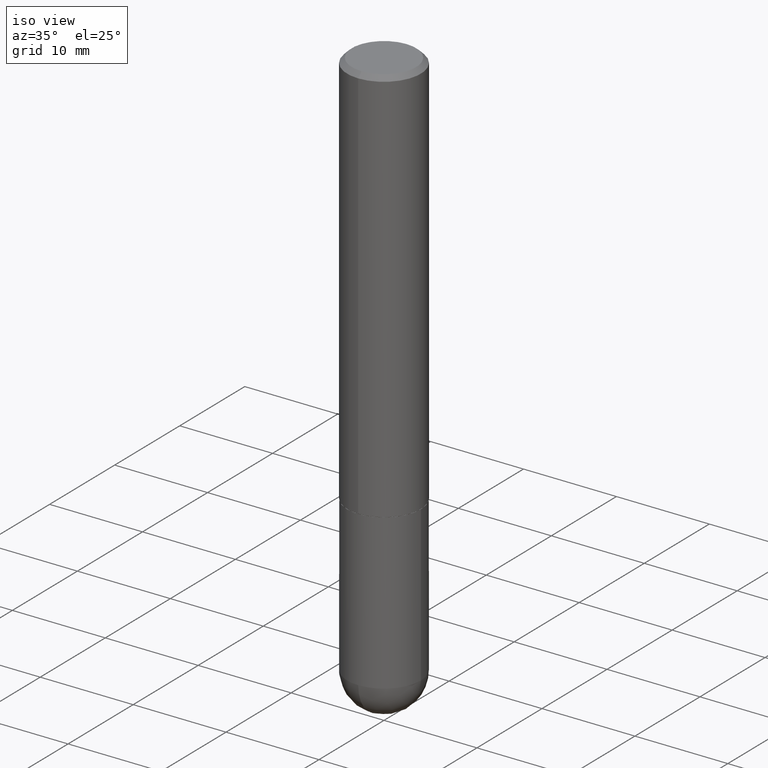
[diagram: clean part render]
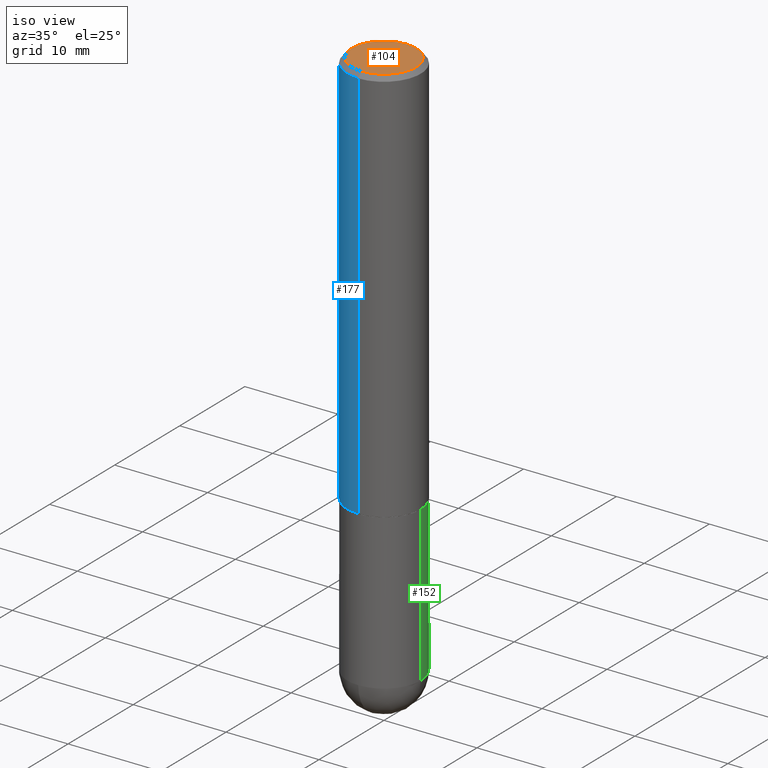
[diagram: same view with three faces highlighted in distinct colors, each labeled with its STEP entity id]
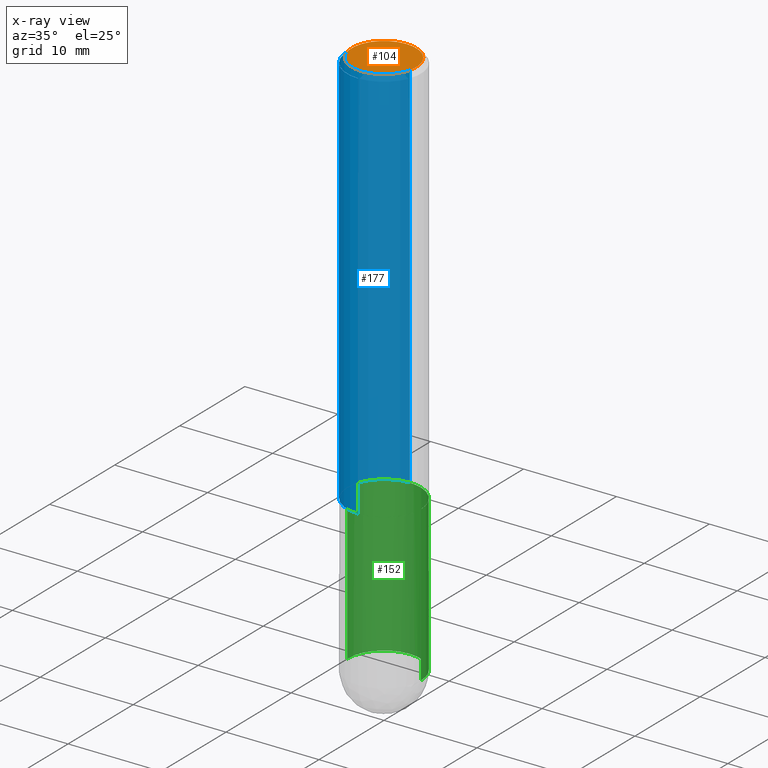
[diagram: x-ray of the same camera — body ghosted, the three highlighted faces saturated]
A machine part, iso view with three faces highlighted in distinct colors.
The next image is the same camera in x-ray (body ghosted, the three faces saturated) — at least one of them is partly hidden behind the body in this view.
Their STEP definitions:

[orange] entity #104 — the highlighted planar face has unit normal (0, -0, -1).
#95 = DIRECTION ( 'NONE',  ( -2.446097073552019730E-29, 3.490581624215010938E-15, 1.000000000000000000 ) ) ;
#104 = ADVANCED_FACE ( 'NONE', ( #328 ), #299, .F. ) ;
#107 = CARTESIAN_POINT ( 'NONE',  ( -1.003347832174086278E-15, -0.1362500000000000377, 4.925432101416136733E-16 ) ) ;
#114 = DIRECTION ( 'NONE',  ( 6.982962677686265922E-15, 1.000000000000000000, -3.490581624215010938E-15 ) ) ;
#131 = EDGE_LOOP ( 'NONE', ( #390, #233 ) ) ;
#136 = CARTESIAN_POINT ( 'NONE',  ( -4.146492609711773360E-46, 5.917046819154153531E-32, 1.695146384231832547E-17 ) ) ;
#140 = EDGE_CURVE ( 'NONE', #157, #326, #365, .T. ) ;
#146 = CIRCLE ( 'NONE', #341, 0.1362500000000000377 ) ;
#153 = AXIS2_PLACEMENT_3D ( 'NONE', #303, #305, #114 ) ;
#155 = DIRECTION ( 'NONE',  ( -6.982962677686265922E-15, -1.000000000000000000, 3.490581624215010544E-15 ) ) ;
#157 = VERTEX_POINT ( 'NONE', #107 ) ;
#176 = EDGE_CURVE ( 'NONE', #326, #157, #146, .T. ) ;
#233 = ORIENTED_EDGE ( 'NONE', *, *, #140, .T. ) ;
#268 = DIRECTION ( 'NONE',  ( -6.982962677686265922E-15, -1.000000000000000000, 3.490581624215010544E-15 ) ) ;
#277 = CARTESIAN_POINT ( 'NONE',  ( 1.021258291611616861E-15, 0.1362500000000000377, -4.586402824569769484E-16 ) ) ;
#299 = PLANE ( 'NONE',  #153 ) ;
#303 = CARTESIAN_POINT ( 'NONE',  ( 9.514286648347539576E-16, 0.1362500000000000377, -4.671160143781362282E-16 ) ) ;
#305 = DIRECTION ( 'NONE',  ( 2.446097073552019449E-29, -3.490581624215010938E-15, -1.000000000000000000 ) ) ;
#306 = CARTESIAN_POINT ( 'NONE',  ( -4.146492609711773360E-46, 5.917046819154153531E-32, 1.695146384231832547E-17 ) ) ;
#326 = VERTEX_POINT ( 'NONE', #277 ) ;
#328 = FACE_OUTER_BOUND ( 'NONE', #131, .T. ) ;
#334 = DIRECTION ( 'NONE',  ( -2.446097073552019730E-29, 3.490581624215010938E-15, 1.000000000000000000 ) ) ;
#341 = AXIS2_PLACEMENT_3D ( 'NONE', #306, #95, #155 ) ;
#365 = CIRCLE ( 'NONE', #399, 0.1362500000000000377 ) ;
#390 = ORIENTED_EDGE ( 'NONE', *, *, #176, .T. ) ;
#399 = AXIS2_PLACEMENT_3D ( 'NONE', #136, #334, #268 ) ;

[blue] entity #177 — the highlighted cylindrical surface (partial cylindrical patch) has radius 3.9688 mm, axis along (-0, 0, 1).
#5 = VERTEX_POINT ( 'NONE', #86 ) ;
#18 = DIRECTION ( 'NONE',  ( -2.446097073552019449E-29, 3.490581624215010938E-15, 1.000000000000000000 ) ) ;
#31 = ORIENTED_EDGE ( 'NONE', *, *, #283, .F. ) ;
#52 = EDGE_CURVE ( 'NONE', #5, #159, #142, .T. ) ;
#61 = CARTESIAN_POINT ( 'NONE',  ( 4.892194147104047096E-31, -6.981163248430033315E-17, -0.02000000000000003511 ) ) ;
#68 = FACE_OUTER_BOUND ( 'NONE', #331, .T. ) ;
#81 = DIRECTION ( 'NONE',  ( -6.982962677686265922E-15, -1.000000000000000000, 3.496765431890251792E-15 ) ) ;
#84 = CARTESIAN_POINT ( 'NONE',  ( 1.110223024625178431E-15, 0.1562499999999943379, -1.687000000000000499 ) ) ;
#86 = CARTESIAN_POINT ( 'NONE',  ( -1.091087918388439336E-15, -0.1562500000000060785, -1.686999999999999611 ) ) ;
#96 = CYLINDRICAL_SURFACE ( 'NONE', #382, 0.1562500000000001388 ) ;
#105 = VERTEX_POINT ( 'NONE', #84 ) ;
#124 = LINE ( 'NONE', #246, #133 ) ;
#133 = VECTOR ( 'NONE', #377, 39.37007874015748143 ) ;
#142 = LINE ( 'NONE', #168, #286 ) ;
#144 = DIRECTION ( 'NONE',  ( -2.446097073552019730E-29, 3.490581624215010938E-15, 1.000000000000000000 ) ) ;
#159 = VERTEX_POINT ( 'NONE', #227 ) ;
#168 = CARTESIAN_POINT ( 'NONE',  ( -1.091087918388479962E-15, -0.1562500000000001388, 5.454033787835959398E-16 ) ) ;
#177 = ADVANCED_FACE ( 'NONE', ( #68 ), #96, .T. ) ;
#178 = CARTESIAN_POINT ( 'NONE',  ( 1.091087918388479765E-15, 0.1562499999999999722, -0.02000000000000057981 ) ) ;
#189 = CIRCLE ( 'NONE', #401, 0.1562500000000000278 ) ;
#207 = CIRCLE ( 'NONE', #294, 0.1562500000000002220 ) ;
#227 = CARTESIAN_POINT ( 'NONE',  ( -1.071952812151801412E-15, -0.1562500000000001110, -0.01999999999999948694 ) ) ;
#246 = CARTESIAN_POINT ( 'NONE',  ( 1.110223024625157329E-15, 0.1562500000000001388, -5.454033787835959398E-16 ) ) ;
#253 = ORIENTED_EDGE ( 'NONE', *, *, #52, .T. ) ;
#266 = CARTESIAN_POINT ( 'NONE',  ( 4.126565763082257571E-29, -5.888611200050725168E-15, -1.687000000000000055 ) ) ;
#274 = DIRECTION ( 'NONE',  ( -6.982962677686266711E-15, -1.000000000000000000, 3.496765431890256131E-15 ) ) ;
#279 = DIRECTION ( 'NONE',  ( -2.446097073552019730E-29, 3.490581624215010938E-15, 1.000000000000000000 ) ) ;
#282 = DIRECTION ( 'NONE',  ( -6.982962677686265922E-15, -1.000000000000000000, 3.490581624215010938E-15 ) ) ;
#283 = EDGE_CURVE ( 'NONE', #287, #159, #189, .T. ) ;
#285 = ORIENTED_EDGE ( 'NONE', *, *, #354, .F. ) ;
#286 = VECTOR ( 'NONE', #18, 39.37007874015748143 ) ;
#287 = VERTEX_POINT ( 'NONE', #178 ) ;
#294 = AXIS2_PLACEMENT_3D ( 'NONE', #266, #300, #81 ) ;
#300 = DIRECTION ( 'NONE',  ( -2.446097073552019730E-29, 3.490581624215010938E-15, 1.000000000000000000 ) ) ;
#321 = ORIENTED_EDGE ( 'NONE', *, *, #378, .T. ) ;
#331 = EDGE_LOOP ( 'NONE', ( #285, #321, #253, #31 ) ) ;
#336 = CARTESIAN_POINT ( 'NONE',  ( 0.000000000000000000, 0.000000000000000000, 0.000000000000000000 ) ) ;
#354 = EDGE_CURVE ( 'NONE', #105, #287, #124, .T. ) ;
#377 = DIRECTION ( 'NONE',  ( -2.446097073552019449E-29, 3.490581624215010938E-15, 1.000000000000000000 ) ) ;
#378 = EDGE_CURVE ( 'NONE', #105, #5, #207, .T. ) ;
#382 = AXIS2_PLACEMENT_3D ( 'NONE', #336, #279, #282 ) ;
#401 = AXIS2_PLACEMENT_3D ( 'NONE', #61, #144, #274 ) ;

[green] entity #152 — the highlighted cylindrical surface (partial cylindrical patch) has radius 3.9688 mm, axis along (-0, 0, 1).
#6 = VERTEX_POINT ( 'NONE', #272 ) ;
#10 = DIRECTION ( 'NONE',  ( -2.445468806185136597E-29, 3.491481338843145583E-15, 1.000000000000000000 ) ) ;
#16 = CARTESIAN_POINT ( 'NONE',  ( -0.1562500000000000000, -5.928166919315270321E-15, -2.343750000000000000 ) ) ;
#35 = DIRECTION ( 'NONE',  ( -2.445468806185136597E-29, 3.491481338843145583E-15, 1.000000000000000000 ) ) ;
#48 = DIRECTION ( 'NONE',  ( -2.445468806185136877E-29, 3.491481338843145188E-15, 1.000000000000000000 ) ) ;
#49 = VERTEX_POINT ( 'NONE', #16 ) ;
#59 = CYLINDRICAL_SURFACE ( 'NONE', #219, 0.1562500000000000000 ) ;
#78 = CARTESIAN_POINT ( 'NONE',  ( 1.091087918388535577E-15, 0.1562499999999916733, -2.343750000000000444 ) ) ;
#98 = EDGE_CURVE ( 'NONE', #49, #196, #361, .T. ) ;
#100 = EDGE_LOOP ( 'NONE', ( #208, #288, #194, #203, #237 ) ) ;
#120 = CARTESIAN_POINT ( 'NONE',  ( 5.731567514496413899E-29, -8.183159387913622595E-15, -2.343750000000000000 ) ) ;
#127 = DIRECTION ( 'NONE',  ( -2.445468806185136877E-29, 3.491481338843145188E-15, 1.000000000000000000 ) ) ;
#129 = AXIS2_PLACEMENT_3D ( 'NONE', #218, #316, #369 ) ;
#139 = AXIS2_PLACEMENT_3D ( 'NONE', #406, #35, #379 ) ;
#148 = CARTESIAN_POINT ( 'NONE',  ( 0.1562500000000000000, -1.091087918388479174E-15, 7.619026212181150377E-30 ) ) ;
#152 = ADVANCED_FACE ( 'NONE', ( #389 ), #59, .T. ) ;
#160 = VERTEX_POINT ( 'NONE', #78 ) ;
#161 = VECTOR ( 'NONE', #48, 39.37007874015748143 ) ;
#172 = CARTESIAN_POINT ( 'NONE',  ( 0.000000000000000000, 0.000000000000000000, 0.000000000000000000 ) ) ;
#187 = EDGE_CURVE ( 'NONE', #6, #160, #197, .T. ) ;
#188 = CIRCLE ( 'NONE', #281, 0.1562500000000000000 ) ;
#194 = ORIENTED_EDGE ( 'NONE', *, *, #255, .F. ) ;
#196 = VERTEX_POINT ( 'NONE', #409 ) ;
#197 = CIRCLE ( 'NONE', #139, 0.1562500000000000000 ) ;
#200 = CARTESIAN_POINT ( 'NONE',  ( 0.1562500000000000000, -6.984708418355709513E-15, -1.688000000000000167 ) ) ;
#203 = ORIENTED_EDGE ( 'NONE', *, *, #211, .F. ) ;
#208 = ORIENTED_EDGE ( 'NONE', *, *, #290, .T. ) ;
#211 = EDGE_CURVE ( 'NONE', #6, #364, #314, .T. ) ;
#213 = DIRECTION ( 'NONE',  ( -2.445468806185136597E-29, 3.491481338843145583E-15, 1.000000000000000000 ) ) ;
#218 = CARTESIAN_POINT ( 'NONE',  ( 4.127951344840510809E-29, -5.893620499967230340E-15, -1.688000000000000167 ) ) ;
#219 = AXIS2_PLACEMENT_3D ( 'NONE', #172, #10, #267 ) ;
#237 = ORIENTED_EDGE ( 'NONE', *, *, #187, .T. ) ;
#255 = EDGE_CURVE ( 'NONE', #364, #196, #309, .T. ) ;
#256 = VECTOR ( 'NONE', #127, 39.37007874015748143 ) ;
#264 = CARTESIAN_POINT ( 'NONE',  ( -0.1562500000000000000, 1.110223024625156540E-15, -7.685836078523291160E-30 ) ) ;
#267 = DIRECTION ( 'NONE',  ( 1.000000000000000000, -6.982962677686266711E-15, 4.876176775795936353E-29 ) ) ;
#272 = CARTESIAN_POINT ( 'NONE',  ( 0.1562500000000000000, -8.129477862328905246E-15, -2.343750000000000000 ) ) ;
#281 = AXIS2_PLACEMENT_3D ( 'NONE', #120, #213, #310 ) ;
#288 = ORIENTED_EDGE ( 'NONE', *, *, #98, .T. ) ;
#290 = EDGE_CURVE ( 'NONE', #160, #49, #188, .T. ) ;
#309 = CIRCLE ( 'NONE', #129, 0.1562500000000000000 ) ;
#310 = DIRECTION ( 'NONE',  ( 1.000000000000000000, -6.982962677686262766E-15, 0.000000000000000000 ) ) ;
#314 = LINE ( 'NONE', #148, #256 ) ;
#316 = DIRECTION ( 'NONE',  ( -2.445468806185136597E-29, 3.491481338843145583E-15, 1.000000000000000000 ) ) ;
#361 = LINE ( 'NONE', #264, #161 ) ;
#364 = VERTEX_POINT ( 'NONE', #200 ) ;
#369 = DIRECTION ( 'NONE',  ( 1.000000000000000000, -6.982962677686269077E-15, 0.000000000000000000 ) ) ;
#379 = DIRECTION ( 'NONE',  ( 1.000000000000000000, -6.982962677686262766E-15, 0.000000000000000000 ) ) ;
#389 = FACE_OUTER_BOUND ( 'NONE', #100, .T. ) ;
#406 = CARTESIAN_POINT ( 'NONE',  ( 5.731567514496413899E-29, -8.183159387913622595E-15, -2.343750000000000000 ) ) ;
#409 = CARTESIAN_POINT ( 'NONE',  ( -0.1562500000000000000, -5.928166919315269532E-15, -1.688000000000000167 ) ) ;